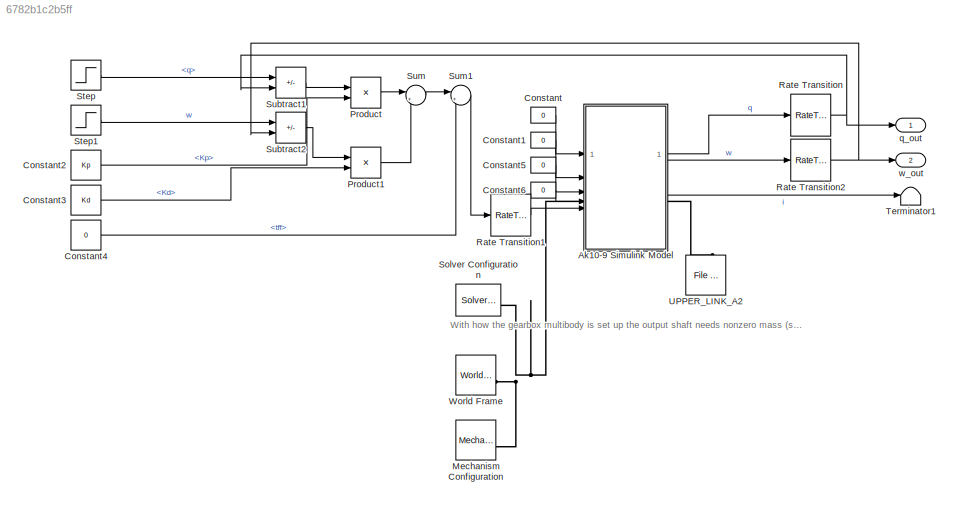
MODEL slx_6782b1c2b5ff
KIND model
CONFIG AbsTol = auto
CONFIG EnableMultiTasking = off
CONFIG FixedStep = 0.00025
CONFIG MaxStep = auto
CONFIG MinStep = auto
CONFIG RelTol = 1e-3
CONFIG SampleTimeConstraint = Unconstrained
CONFIG SolverName = FixedStepAuto
CONFIG StartTime = 0.0
CONFIG StopTime = 10.0
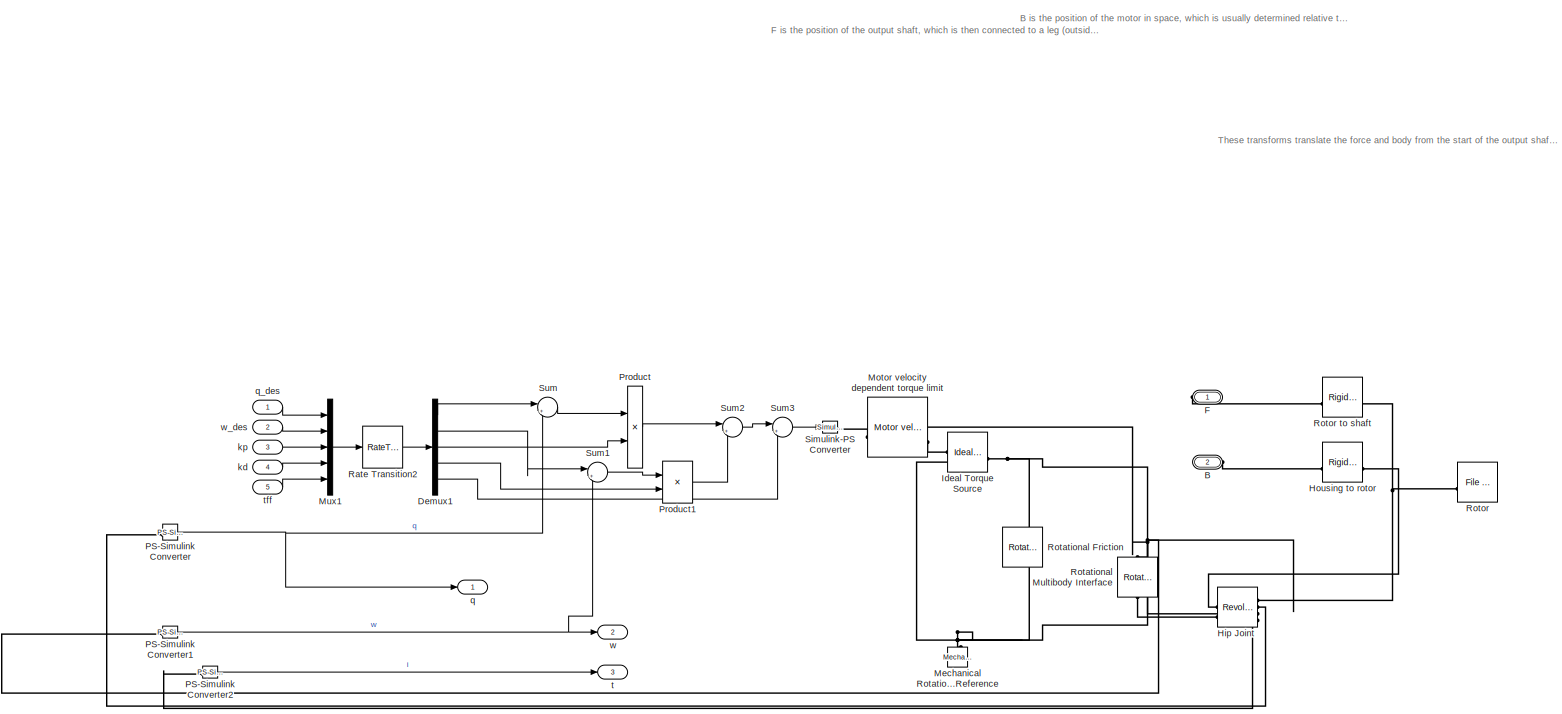
[diagram: Ak10-9 Simulink Model - part 1/1, most of the canvas]
BLOCK [SubSystem] Ak10-9 Simulink Model
  AncestorBlock = aru_toolbox/Baleka 2.5/Ak10-9 Simulink Model
BLOCK [PMIOPort] Ak10-9 Simulink Model/B
  Port = 2
  Side = Left
BLOCK [Demux] Ak10-9 Simulink Model/Demux1
  Outputs = 5
BLOCK [PMIOPort] Ak10-9 Simulink Model/F
  Side = Right
BLOCK [Reference] Ak10-9 Simulink Model/Hip Joint  REF=sm_lib/Joints/Revolute Joint
  SourceBlock = sm_lib/Joints/Revolute Joint
  SourceType = Revolute Joint
BLOCK [Reference] Ak10-9 Simulink Model/Housing to rotor  REF=sm_lib/Frames and
Transforms/Rigid
Transform
  SourceBlock = sm_lib/Frames and\nTransforms/Rigid\nTransform
  SourceType = Rigid\nTransform
BLOCK [Reference] Ak10-9 Simulink Model/Ideal Torque Source  REF=fl_lib/Mechanical/Mechanical Sources/Ideal Torque Source
  SourceBlock = fl_lib/Mechanical/Mechanical Sources/Ideal Torque Source
  SourceType = Ideal Torque Source
BLOCK [Reference] Ak10-9 Simulink Model/Mechanical Rotational Reference  REF=fl_lib/Mechanical/Rotational Elements/Mechanical
Rotational Reference
  NameLocation = right
  SourceBlock = fl_lib/Mechanical/Rotational Elements/Mechanical\nRotational Reference
  SourceType = Mechanical\nRotational Reference
BLOCK [Reference] Ak10-9 Simulink Model/Motor velocity dependent torque limit  REF=BalekaSSCs_lib/Motor velocity
dependent torque
limit
  SourceBlock = BalekaSSCs_lib/Motor velocity\ndependent torque\nlimit
  SourceType = Motor velocity\ndependent torque\nlimit
BLOCK [Mux] Ak10-9 Simulink Model/Mux1
  DisplayOption = bar
  Inputs = 5
BLOCK [Reference] Ak10-9 Simulink Model/PS-Simulink Converter  REF=nesl_utility/PS-Simulink
Converter
  SourceBlock = nesl_utility/PS-Simulink\nConverter
  SourceType = PS-Simulink\nConverter
BLOCK [Reference] Ak10-9 Simulink Model/PS-Simulink Converter1  REF=nesl_utility/PS-Simulink
Converter
  SourceBlock = nesl_utility/PS-Simulink\nConverter
  SourceType = PS-Simulink\nConverter
BLOCK [Reference] Ak10-9 Simulink Model/PS-Simulink Converter2  REF=nesl_utility/PS-Simulink
Converter
  SourceBlock = nesl_utility/PS-Simulink\nConverter
  SourceType = PS-Simulink\nConverter
BLOCK [Product] Ak10-9 Simulink Model/Product
BLOCK [Product] Ak10-9 Simulink Model/Product1
BLOCK [RateTransition] Ak10-9 Simulink Model/Rate Transition2
  OutPortSampleTime = 1/1000
BLOCK [Reference] Ak10-9 Simulink Model/Rotational Friction  REF=fl_lib/Mechanical/Rotational Elements/Rotational Friction
  NameLocation = left
  SourceBlock = fl_lib/Mechanical/Rotational Elements/Rotational Friction
  SourceType = Rotational Friction
BLOCK [Reference] Ak10-9 Simulink Model/Rotational Multibody Interface  REF=fl_lib/Mechanical/Multibody Interfaces/Rotational Multibody
Interface
  NameLocation = left
  SourceBlock = fl_lib/Mechanical/Multibody Interfaces/Rotational Multibody\nInterface
  SourceType = Rotational Multibody\nInterface
BLOCK [Reference] Ak10-9 Simulink Model/Rotor  REF=sm_lib/Body Elements/File Solid
  SourceBlock = sm_lib/Body Elements/File Solid
  SourceType = File Solid
BLOCK [Reference] Ak10-9 Simulink Model/Rotor to shaft  REF=sm_lib/Frames and
Transforms/Rigid
Transform
  SourceBlock = sm_lib/Frames and\nTransforms/Rigid\nTransform
  SourceType = Rigid\nTransform
BLOCK [Reference] Ak10-9 Simulink Model/Simulink-PS Converter  REF=nesl_utility/Simulink-PS
Converter
  SourceBlock = nesl_utility/Simulink-PS\nConverter
  SourceType = Simulink-PS\nConverter
BLOCK [Sum] Ak10-9 Simulink Model/Sum
  Inputs = |+-
BLOCK [Sum] Ak10-9 Simulink Model/Sum1
  Inputs = |+-
BLOCK [Sum] Ak10-9 Simulink Model/Sum2
  Inputs = |++
BLOCK [Sum] Ak10-9 Simulink Model/Sum3
  Inputs = |++
BLOCK [Inport] Ak10-9 Simulink Model/kd
  Port = 4
BLOCK [Inport] Ak10-9 Simulink Model/kp
  Port = 3
BLOCK [Outport] Ak10-9 Simulink Model/q
BLOCK [Inport] Ak10-9 Simulink Model/q_des
BLOCK [Outport] Ak10-9 Simulink Model/t
  Port = 3
BLOCK [Inport] Ak10-9 Simulink Model/tff
  Port = 5
BLOCK [Outport] Ak10-9 Simulink Model/w
  Port = 2
BLOCK [Inport] Ak10-9 Simulink Model/w_des
  Port = 2
BLOCK [Constant] Constant
  Value = 0
BLOCK [Constant] Constant1
  Value = 0
BLOCK [Constant] Constant2
  Value = Kp
BLOCK [Constant] Constant3
  Value = Kd
BLOCK [Constant] Constant4
  Value = 0
BLOCK [Constant] Constant5
  Value = 0
BLOCK [Constant] Constant6
  NameLocation = top
  Value = 0
BLOCK [Reference] Mechanism Configuration  REF=sm_lib/Utilities/Mechanism
Configuration
  SourceBlock = sm_lib/Utilities/Mechanism\nConfiguration
  SourceType = Mechanism\nConfiguration
BLOCK [Product] Product
BLOCK [Product] Product1
BLOCK [RateTransition] Rate Transition
  OutPortSampleTime = 1/1000
BLOCK [RateTransition] Rate Transition1
  OutPortSampleTime = 1/1000
BLOCK [RateTransition] Rate Transition2
  OutPortSampleTime = 1/1000
BLOCK [Reference] Solver Configuration  REF=nesl_utility/Solver
Configuration
  SourceBlock = nesl_utility/Solver\nConfiguration
  SourceType = Solver\nConfiguration
BLOCK [Step] Step
  After = qStepSize
  SampleTime = 0
  Time = StepTime
BLOCK [Step] Step1
  After = wStepSize+wStart
  Before = wStart
  SampleTime = 0
  Time = StepTime
BLOCK [Sum] Subtract1
  IconShape = rectangular
  Inputs = +-
BLOCK [Sum] Subtract2
  IconShape = rectangular
  Inputs = +-
BLOCK [Sum] Sum
  Inputs = |++
BLOCK [Sum] Sum1
  Inputs = |++
BLOCK [Terminator] Terminator1
BLOCK [Reference] UPPER_LINK_A2  REF=sm_lib/Body Elements/File Solid
  NameLocation = right
  SourceBlock = sm_lib/Body Elements/File Solid
  SourceType = File Solid
BLOCK [Reference] World Frame  REF=sm_lib/Frames and
Transforms/World Frame
  SourceBlock = sm_lib/Frames and\nTransforms/World Frame
  SourceType = World Frame
BLOCK [Outport] q_out
  SignalName = q_out
BLOCK [Outport] w_out
  Port = 2
  SignalName = w_out
ANNOTATION (root): With how the gearbox multibody is set up the output shaft needs nonzero mass (so that it spins something
ANNOTATION Ak10-9 Simulink Model: B is the position of the motor in space, which is usually determined relative to the boom mounting point
ANNOTATION Ak10-9 Simulink Model: F is the position of the output shaft, which is then connected to a leg (outside of this block)
ANNOTATION Ak10-9 Simulink Model: These transforms translate the force and body from the start of the output shaft (where the leg is connected) to the centre of the motor along the Z-axis
LINE Ak10-9 Simulink Model:1 -> Rate Transition:1
LINE Ak10-9 Simulink Model:2 -> Rate Transition2:1
LINE Ak10-9 Simulink Model:3 -> Terminator1:1
LINE Constant1:1 -> Ak10-9 Simulink Model:2
LINE Constant2:1 -> Product:2
LINE Constant3:1 -> Product1:2
LINE Constant4:1 -> Sum1:2
LINE Constant5:1 -> Ak10-9 Simulink Model:3
LINE Constant6:1 -> Ak10-9 Simulink Model:4
LINE Constant:1 -> Ak10-9 Simulink Model:1
LINE Product1:1 -> Sum:2
LINE Product:1 -> Sum:1
LINE Rate Transition1:1 -> Ak10-9 Simulink Model:5
NET Rate Transition2:1 -> Subtract2:2, w_out:1
NET Rate Transition:1 -> Subtract1:2, q_out:1
LINE Step1:1 -> Subtract2:1
LINE Step:1 -> Subtract1:1
LINE Subtract1:1 -> Product:1
LINE Subtract2:1 -> Product1:1
LINE Sum1:1 -> Rate Transition1:1
LINE Sum:1 -> Sum1:1
PNET net1: Ak10-9 Simulink Model:LConn1 -- Mechanism Configuration:RConn1 -- Solver Configuration:RConn1 -- World Frame:RConn1
PLINE Ak10-9 Simulink Model:RConn1 -- UPPER_LINK_A2:RConn1
note: NET lines group one-source signal fan-out (src -> all destinations, sorted); 1:1 wires keep LINE; PNET lines group multi-terminal physical nets as a canonical sorted terminal list (undirected conserving connections); 2-terminal nets keep the pairwise PLINE form
